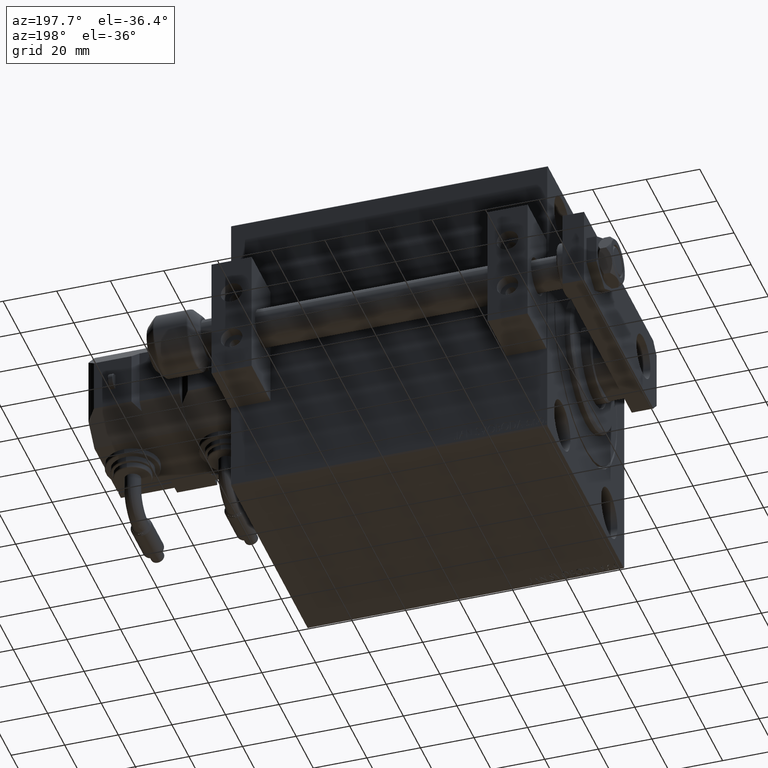
[diagram: clean part render]
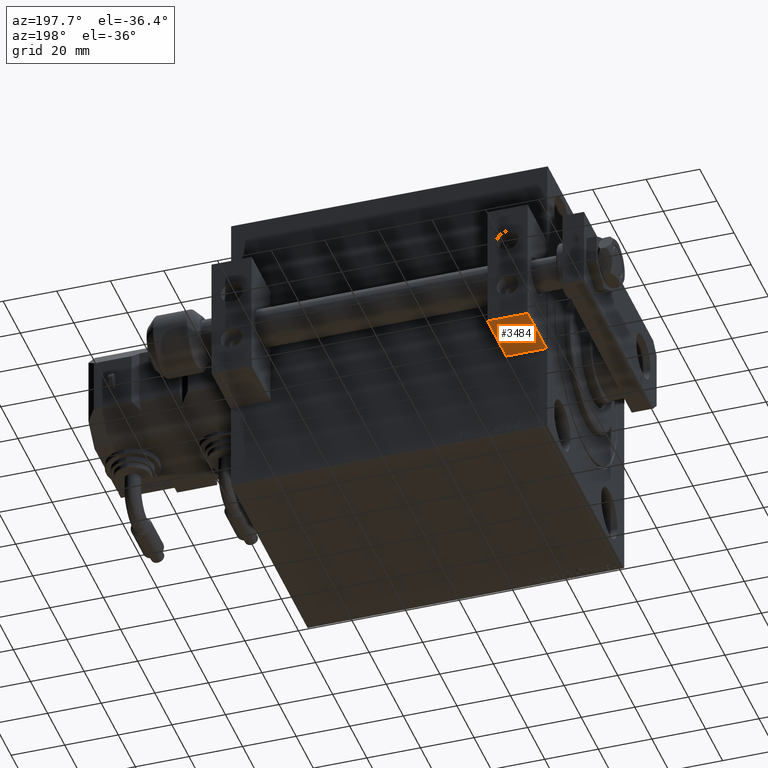
[diagram: same view with one face highlighted and labeled with its STEP entity id]
A machine part, auxiliary view. The second image highlights one B-rep face of the part: STEP entity #3484.
In plain terms, the highlighted planar face has unit normal (0, 0, -1).
Its self-contained STEP definition (entity closure, byte-faithful):
#1883 = DIRECTION ( 'NONE',  ( -1.000000000000000000, -0.000000000000000000, -0.000000000000000000 ) ) ;
#1961 = FACE_OUTER_BOUND ( 'NONE', #20469, .T. ) ;
#2850 = ORIENTED_EDGE ( 'NONE', *, *, #31569, .F. ) ;
#3484 = ADVANCED_FACE ( 'NONE', ( #1961 ), #16908, .T. ) ;
#4210 = DIRECTION ( 'NONE',  ( 0.000000000000000000, -1.000000000000000000, -3.154042683594194627E-16 ) ) ;
#5578 = CARTESIAN_POINT ( 'NONE',  ( 15.00000000000000000, 11.00000000000000355, -23.99999999999999289 ) ) ;
#9524 = CARTESIAN_POINT ( 'NONE',  ( 0.000000000000000000, 11.00000000000000355, -23.99999999999999289 ) ) ;
#10154 = CARTESIAN_POINT ( 'NONE',  ( 0.000000000000000000, 11.00000000000000355, -23.99999999999999289 ) ) ;
#11858 = LINE ( 'NONE', #16236, #39337 ) ;
#12648 = EDGE_CURVE ( 'NONE', #45253, #46259, #23802, .T. ) ;
#12789 = DIRECTION ( 'NONE',  ( 0.000000000000000000, 3.154042683594194627E-16, -1.000000000000000000 ) ) ;
#13232 = VERTEX_POINT ( 'NONE', #10154 ) ;
#14585 = ORIENTED_EDGE ( 'NONE', *, *, #12648, .T. ) ;
#16236 = CARTESIAN_POINT ( 'NONE',  ( 15.00000000000000000, -11.00000000000000000, -24.00000000000000000 ) ) ;
#16619 = CARTESIAN_POINT ( 'NONE',  ( 15.00000000000000000, -11.00000000000000000, -24.00000000000000000 ) ) ;
#16908 = PLANE ( 'NONE',  #28497 ) ;
#17156 = VECTOR ( 'NONE', #1883, 1000.000000000000000 ) ;
#17421 = EDGE_CURVE ( 'NONE', #13232, #25079, #33262, .T. ) ;
#18398 = ORIENTED_EDGE ( 'NONE', *, *, #17421, .F. ) ;
#20174 = CARTESIAN_POINT ( 'NONE',  ( 15.00000000000000000, 11.00000000000000355, -23.99999999999999289 ) ) ;
#20469 = EDGE_LOOP ( 'NONE', ( #18398, #2850, #14585, #37956 ) ) ;
#23151 = CARTESIAN_POINT ( 'NONE',  ( 0.000000000000000000, -11.00000000000000000, -24.00000000000000000 ) ) ;
#23802 = LINE ( 'NONE', #39557, #48504 ) ;
#24742 = DIRECTION ( 'NONE',  ( 0.000000000000000000, -1.000000000000000000, -3.154042683594194627E-16 ) ) ;
#24745 = EDGE_CURVE ( 'NONE', #46259, #25079, #11858, .T. ) ;
#25079 = VERTEX_POINT ( 'NONE', #23151 ) ;
#28497 = AXIS2_PLACEMENT_3D ( 'NONE', #5578, #12789, #48407 ) ;
#31569 = EDGE_CURVE ( 'NONE', #45253, #13232, #32851, .T. ) ;
#32851 = LINE ( 'NONE', #48583, #17156 ) ;
#33262 = LINE ( 'NONE', #9524, #38252 ) ;
#37956 = ORIENTED_EDGE ( 'NONE', *, *, #24745, .T. ) ;
#38252 = VECTOR ( 'NONE', #24742, 1000.000000000000000 ) ;
#39337 = VECTOR ( 'NONE', #39729, 1000.000000000000000 ) ;
#39557 = CARTESIAN_POINT ( 'NONE',  ( 15.00000000000000000, 11.00000000000000355, -23.99999999999999289 ) ) ;
#39729 = DIRECTION ( 'NONE',  ( -1.000000000000000000, -0.000000000000000000, -0.000000000000000000 ) ) ;
#45253 = VERTEX_POINT ( 'NONE', #20174 ) ;
#46259 = VERTEX_POINT ( 'NONE', #16619 ) ;
#48407 = DIRECTION ( 'NONE',  ( 0.000000000000000000, 1.000000000000000000, 3.154042683594194627E-16 ) ) ;
#48504 = VECTOR ( 'NONE', #4210, 1000.000000000000000 ) ;
#48583 = CARTESIAN_POINT ( 'NONE',  ( 15.00000000000000000, 11.00000000000000355, -23.99999999999999289 ) ) ;